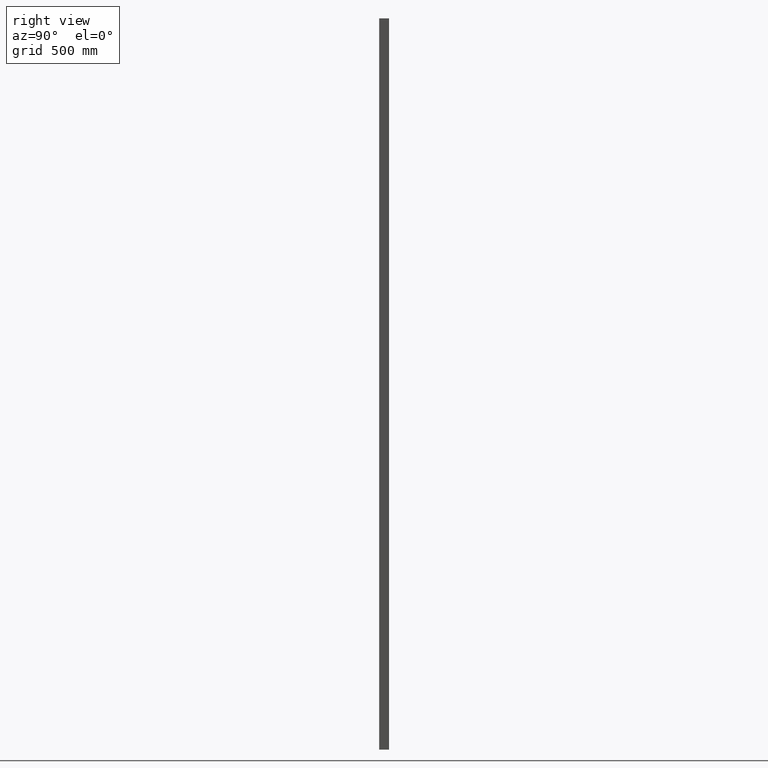
[diagram: clean part render]
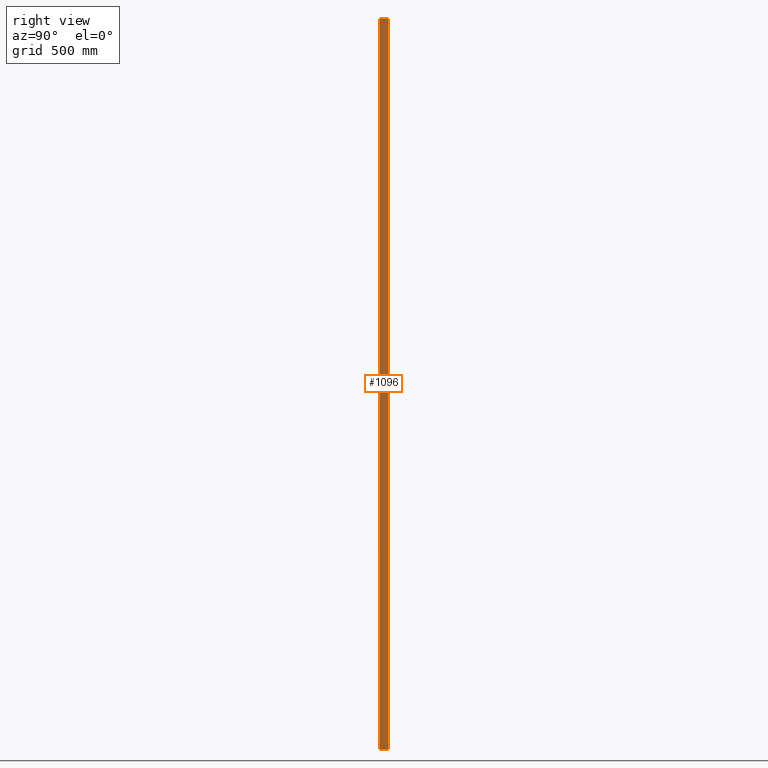
[diagram: same view with one face highlighted and labeled with its STEP entity id]
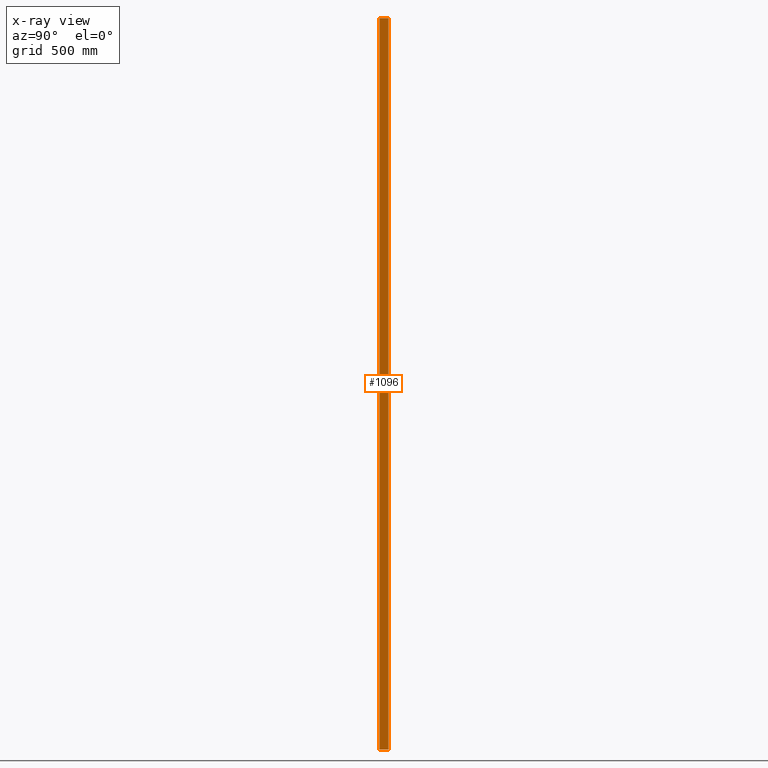
[diagram: x-ray of the same camera — body ghosted, the highlighted face saturated]
A machine part, right view. The second image highlights one B-rep face of the part: STEP entity #1096.
The next image is the same camera in x-ray: the body ghosted, the highlighted face saturated — about 0% of this face is hidden behind the body in this view.
In plain terms, the highlighted planar face has unit normal (-1, -0, 0).
Its self-contained STEP definition (entity closure, byte-faithful):
#823 = LINE ( 'NONE', #5475, #4745 ) ;
#1096 = ADVANCED_FACE ( 'NONE', ( #12908 ), #3728, .F. ) ;
#1543 = VERTEX_POINT ( 'NONE', #15496 ) ;
#2333 = VECTOR ( 'NONE', #5534, 1000.000000000000000 ) ;
#2334 = LINE ( 'NONE', #5386, #9773 ) ;
#3147 = CARTESIAN_POINT ( 'NONE',  ( 19.99999999999998934, 18.00000000000001066, 1500.000000000000000 ) ) ;
#3485 = LINE ( 'NONE', #4307, #2333 ) ;
#3487 = AXIS2_PLACEMENT_3D ( 'NONE', #10053, #13921, #7632 ) ;
#3728 = PLANE ( 'NONE',  #3487 ) ;
#4049 = ORIENTED_EDGE ( 'NONE', *, *, #8963, .F. ) ;
#4272 = LINE ( 'NONE', #3147, #6286 ) ;
#4307 = CARTESIAN_POINT ( 'NONE',  ( 19.99999999999999645, -18.00000000000000000, 1500.000000000000000 ) ) ;
#4686 = VERTEX_POINT ( 'NONE', #10033 ) ;
#4745 = VECTOR ( 'NONE', #13479, 1000.000000000000000 ) ;
#4918 = EDGE_CURVE ( 'NONE', #4686, #1543, #823, .T. ) ;
#5386 = CARTESIAN_POINT ( 'NONE',  ( 19.99999999999998934, 18.00000000000001066, 1500.000000000000000 ) ) ;
#5475 = CARTESIAN_POINT ( 'NONE',  ( 19.99999999999998934, 18.00000000000001066, -1500.000000000000000 ) ) ;
#5534 = DIRECTION ( 'NONE',  ( -0.000000000000000000, -0.000000000000000000, -1.000000000000000000 ) ) ;
#5827 = EDGE_CURVE ( 'NONE', #10764, #4686, #3485, .T. ) ;
#5865 = CARTESIAN_POINT ( 'NONE',  ( 19.99999999999998934, 18.00000000000001066, 1500.000000000000000 ) ) ;
#6286 = VECTOR ( 'NONE', #9383, 1000.000000000000000 ) ;
#7632 = DIRECTION ( 'NONE',  ( 1.927470528863118802E-16, -1.000000000000000000, 0.000000000000000000 ) ) ;
#8082 = ORIENTED_EDGE ( 'NONE', *, *, #5827, .T. ) ;
#8435 = EDGE_LOOP ( 'NONE', ( #11324, #4049, #9227, #8082 ) ) ;
#8963 = EDGE_CURVE ( 'NONE', #14735, #1543, #2334, .T. ) ;
#9144 = DIRECTION ( 'NONE',  ( -0.000000000000000000, -0.000000000000000000, -1.000000000000000000 ) ) ;
#9227 = ORIENTED_EDGE ( 'NONE', *, *, #10163, .F. ) ;
#9383 = DIRECTION ( 'NONE',  ( -1.927470528863118802E-16, 1.000000000000000000, -0.000000000000000000 ) ) ;
#9756 = CARTESIAN_POINT ( 'NONE',  ( 19.99999999999999645, -18.00000000000000000, 1500.000000000000000 ) ) ;
#9773 = VECTOR ( 'NONE', #9144, 1000.000000000000000 ) ;
#10033 = CARTESIAN_POINT ( 'NONE',  ( 19.99999999999999645, -18.00000000000000000, -1500.000000000000000 ) ) ;
#10053 = CARTESIAN_POINT ( 'NONE',  ( 19.99999999999998934, 18.00000000000001066, 1500.000000000000000 ) ) ;
#10163 = EDGE_CURVE ( 'NONE', #10764, #14735, #4272, .T. ) ;
#10764 = VERTEX_POINT ( 'NONE', #9756 ) ;
#11324 = ORIENTED_EDGE ( 'NONE', *, *, #4918, .T. ) ;
#12908 = FACE_OUTER_BOUND ( 'NONE', #8435, .T. ) ;
#13479 = DIRECTION ( 'NONE',  ( -1.927470528863118802E-16, 1.000000000000000000, -0.000000000000000000 ) ) ;
#13921 = DIRECTION ( 'NONE',  ( -1.000000000000000000, -1.927470528863118802E-16, 0.000000000000000000 ) ) ;
#14735 = VERTEX_POINT ( 'NONE', #5865 ) ;
#15496 = CARTESIAN_POINT ( 'NONE',  ( 19.99999999999998934, 18.00000000000001066, -1500.000000000000000 ) ) ;